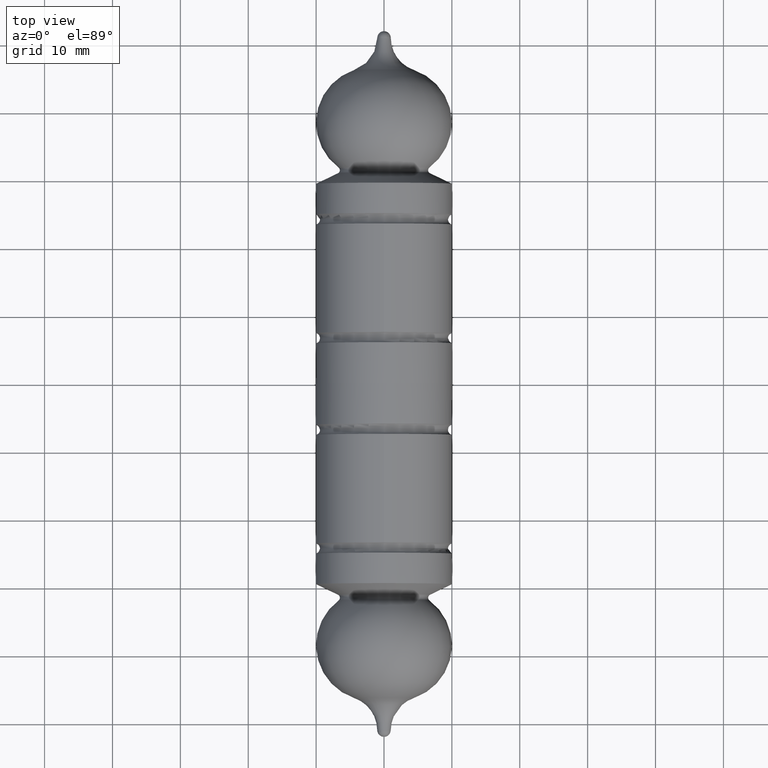
[diagram: clean part render]
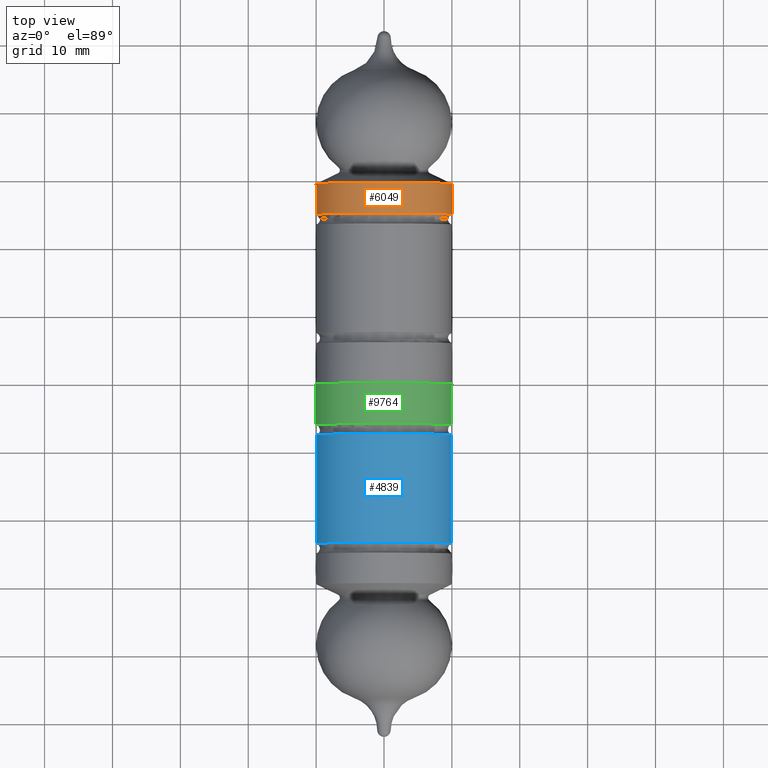
[diagram: same view with three faces highlighted in distinct colors, each labeled with its STEP entity id]
A machine part, top view with three faces highlighted in distinct colors.
Their STEP definitions:

[orange] entity #6049 — the highlighted cylindrical surface (bore or boss wall) has radius 10 mm, axis along (-0, -1, -0).
#702 = DIRECTION ( 'NONE',  ( 2.905941557298832194E-17, 1.000000000000000000, -3.697785493223511449E-32 ) ) ;
#845 = CARTESIAN_POINT ( 'NONE',  ( -7.264853893247078883E-16, -25.00000000000000355, 10.00000000000005862 ) ) ;
#1194 = VERTEX_POINT ( 'NONE', #8359 ) ;
#1798 = ORIENTED_EDGE ( 'NONE', *, *, #8499, .F. ) ;
#2916 = EDGE_CURVE ( 'NONE', #1194, #1194, #4855, .T. ) ;
#3676 = VERTEX_POINT ( 'NONE', #845 ) ;
#4675 = DIRECTION ( 'NONE',  ( 2.905941557298832194E-17, 1.000000000000000000, -3.697785493223511449E-32 ) ) ;
#4854 = CARTESIAN_POINT ( 'NONE',  ( -7.264853893247078883E-16, -25.00000000000000355, 9.244463733058779388E-31 ) ) ;
#4855 = CIRCLE ( 'NONE', #7555, 10.00000000000005862 ) ;
#5076 = ORIENTED_EDGE ( 'NONE', *, *, #2916, .T. ) ;
#6049 = ADVANCED_FACE ( 'NONE', ( #6385, #11877 ), #7761, .T. ) ;
#6385 = FACE_OUTER_BOUND ( 'NONE', #11646, .T. ) ;
#6831 = CARTESIAN_POINT ( 'NONE',  ( 0.000000000000000000, -0.000000000000000000, 0.000000000000000000 ) ) ;
#7555 = AXIS2_PLACEMENT_3D ( 'NONE', #7661, #702, #8526 ) ;
#7661 = CARTESIAN_POINT ( 'NONE',  ( -8.572527594031550104E-16, -29.50000000000000000, 1.090846720500936168E-30 ) ) ;
#7761 = CYLINDRICAL_SURFACE ( 'NONE', #8230, 10.00000000000005862 ) ;
#8230 = AXIS2_PLACEMENT_3D ( 'NONE', #6831, #4675, #12527 ) ;
#8336 = AXIS2_PLACEMENT_3D ( 'NONE', #4854, #8751, #10697 ) ;
#8359 = CARTESIAN_POINT ( 'NONE',  ( -10.00000000000005862, -29.50000000000000000, 1.090846720500936168E-30 ) ) ;
#8499 = EDGE_CURVE ( 'NONE', #3676, #3676, #8958, .T. ) ;
#8526 = DIRECTION ( 'NONE',  ( -1.000000000000000000, 0.000000000000000000, 0.000000000000000000 ) ) ;
#8587 = EDGE_LOOP ( 'NONE', ( #1798 ) ) ;
#8751 = DIRECTION ( 'NONE',  ( 1.109335647967050917E-31, 1.000000000000000000, -3.697785493223511449E-32 ) ) ;
#8958 = CIRCLE ( 'NONE', #8336, 10.00000000000005862 ) ;
#10697 = DIRECTION ( 'NONE',  ( 0.000000000000000000, 0.000000000000000000, 1.000000000000000000 ) ) ;
#11646 = EDGE_LOOP ( 'NONE', ( #5076 ) ) ;
#11877 = FACE_OUTER_BOUND ( 'NONE', #8587, .T. ) ;
#12527 = DIRECTION ( 'NONE',  ( -1.000000000000000000, 2.905941557298773029E-17, -1.074554853473474148E-48 ) ) ;

[blue] entity #4839 — the highlighted cylindrical surface (bore or boss wall) has radius 10 mm, axis along (0, 1, 0).
#1911 = DIRECTION ( 'NONE',  ( -0.000000000000000000, 1.000000000000000000, -0.000000000000000000 ) ) ;
#1948 = CARTESIAN_POINT ( 'NONE',  ( -4.358912335948209464E-16, -7.500000000000004441, 0.000000000000000000 ) ) ;
#2060 = ORIENTED_EDGE ( 'NONE', *, *, #8161, .F. ) ;
#2572 = CARTESIAN_POINT ( 'NONE',  ( 0.000000000000000000, 0.000000000000000000, 0.000000000000000000 ) ) ;
#2719 = DIRECTION ( 'NONE',  ( 0.000000000000000000, -1.000000000000000000, 0.000000000000000000 ) ) ;
#3351 = AXIS2_PLACEMENT_3D ( 'NONE', #1948, #1911, #8854 ) ;
#3755 = FACE_OUTER_BOUND ( 'NONE', #9409, .T. ) ;
#4839 = ADVANCED_FACE ( 'NONE', ( #7785, #3755 ), #10509, .T. ) ;
#4932 = CARTESIAN_POINT ( 'NONE',  ( -4.358912335948209464E-16, -7.500000000000004441, 10.00000000000000533 ) ) ;
#5842 = AXIS2_PLACEMENT_3D ( 'NONE', #2572, #6384, #8355 ) ;
#6384 = DIRECTION ( 'NONE',  ( 5.811883114597608921E-17, 1.000000000000000000, -0.000000000000000000 ) ) ;
#6654 = VERTEX_POINT ( 'NONE', #4932 ) ;
#6956 = EDGE_CURVE ( 'NONE', #6654, #6654, #10185, .T. ) ;
#7283 = AXIS2_PLACEMENT_3D ( 'NONE', #10710, #2719, #9638 ) ;
#7785 = FACE_OUTER_BOUND ( 'NONE', #9583, .T. ) ;
#8161 = EDGE_CURVE ( 'NONE', #11073, #11073, #9706, .T. ) ;
#8355 = DIRECTION ( 'NONE',  ( -1.000000000000000000, 5.811883114597608921E-17, 0.000000000000000000 ) ) ;
#8854 = DIRECTION ( 'NONE',  ( 0.000000000000000000, 0.000000000000000000, 1.000000000000000000 ) ) ;
#9409 = EDGE_LOOP ( 'NONE', ( #2060 ) ) ;
#9583 = EDGE_LOOP ( 'NONE', ( #11204 ) ) ;
#9638 = DIRECTION ( 'NONE',  ( 0.000000000000000000, 0.000000000000000000, -1.000000000000000000 ) ) ;
#9706 = CIRCLE ( 'NONE', #7283, 10.00000000000000533 ) ;
#9838 = CARTESIAN_POINT ( 'NONE',  ( -1.365792531930438472E-15, -23.50000000000000711, -10.00000000000000533 ) ) ;
#10185 = CIRCLE ( 'NONE', #3351, 10.00000000000000533 ) ;
#10509 = CYLINDRICAL_SURFACE ( 'NONE', #5842, 10.00000000000000533 ) ;
#10710 = CARTESIAN_POINT ( 'NONE',  ( -1.365792531930438472E-15, -23.50000000000000711, 0.000000000000000000 ) ) ;
#11073 = VERTEX_POINT ( 'NONE', #9838 ) ;
#11204 = ORIENTED_EDGE ( 'NONE', *, *, #6956, .F. ) ;

[green] entity #9764 — the highlighted cylindrical surface (bore or boss wall) has radius 10 mm, axis along (0, 1, 0).
#533 = AXIS2_PLACEMENT_3D ( 'NONE', #5399, #8370, #6399 ) ;
#1076 = ORIENTED_EDGE ( 'NONE', *, *, #5760, .F. ) ;
#1745 = CIRCLE ( 'NONE', #10344, 10.00000000000000533 ) ;
#1803 = DIRECTION ( 'NONE',  ( 0.000000000000000000, -1.000000000000000000, 0.000000000000000000 ) ) ;
#2778 = CARTESIAN_POINT ( 'NONE',  ( -10.00000000000000533, 5.500532233458459942E-16, 0.000000000000000000 ) ) ;
#2955 = CARTESIAN_POINT ( 'NONE',  ( -3.487129868758566585E-16, -6.000000000000001776, -10.00000000000000533 ) ) ;
#3439 = EDGE_LOOP ( 'NONE', ( #10408 ) ) ;
#4458 = EDGE_CURVE ( 'NONE', #9549, #9549, #1745, .T. ) ;
#4653 = DIRECTION ( 'NONE',  ( 0.000000000000000000, 0.000000000000000000, -1.000000000000000000 ) ) ;
#5399 = CARTESIAN_POINT ( 'NONE',  ( -1.809534928807725045E-33, -3.113508811391521225E-17, 0.000000000000000000 ) ) ;
#5663 = CARTESIAN_POINT ( 'NONE',  ( -3.487129868758566585E-16, -6.000000000000001776, 0.000000000000000000 ) ) ;
#5752 = DIRECTION ( 'NONE',  ( -1.000000000000000000, 5.811883114597608921E-17, 0.000000000000000000 ) ) ;
#5760 = EDGE_CURVE ( 'NONE', #9853, #9853, #12041, .T. ) ;
#5894 = FACE_OUTER_BOUND ( 'NONE', #3439, .T. ) ;
#6399 = DIRECTION ( 'NONE',  ( -1.000000000000000000, 5.811883114597608921E-17, 0.000000000000000000 ) ) ;
#7439 = CYLINDRICAL_SURFACE ( 'NONE', #10699, 10.00000000000000533 ) ;
#8370 = DIRECTION ( 'NONE',  ( 5.811883114597608921E-17, 1.000000000000000000, -0.000000000000000000 ) ) ;
#9499 = DIRECTION ( 'NONE',  ( 5.811883114597608921E-17, 1.000000000000000000, -0.000000000000000000 ) ) ;
#9549 = VERTEX_POINT ( 'NONE', #2955 ) ;
#9764 = ADVANCED_FACE ( 'NONE', ( #11392, #5894 ), #7439, .T. ) ;
#9853 = VERTEX_POINT ( 'NONE', #2778 ) ;
#10344 = AXIS2_PLACEMENT_3D ( 'NONE', #5663, #1803, #4653 ) ;
#10408 = ORIENTED_EDGE ( 'NONE', *, *, #4458, .F. ) ;
#10699 = AXIS2_PLACEMENT_3D ( 'NONE', #11619, #9499, #5752 ) ;
#11392 = FACE_OUTER_BOUND ( 'NONE', #11888, .T. ) ;
#11619 = CARTESIAN_POINT ( 'NONE',  ( 0.000000000000000000, 0.000000000000000000, 0.000000000000000000 ) ) ;
#11888 = EDGE_LOOP ( 'NONE', ( #1076 ) ) ;
#12041 = CIRCLE ( 'NONE', #533, 10.00000000000000533 ) ;